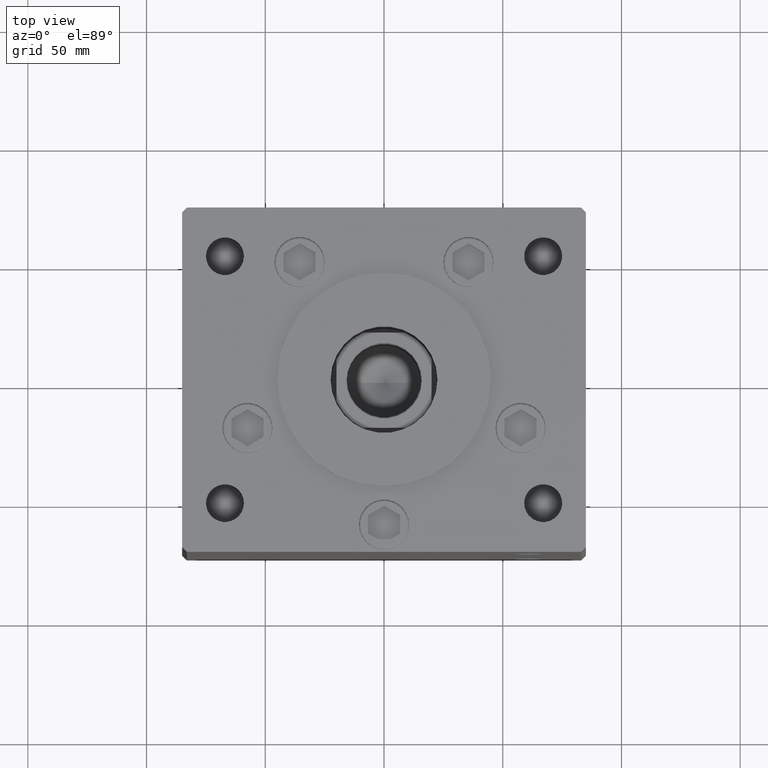
[diagram: clean part render]
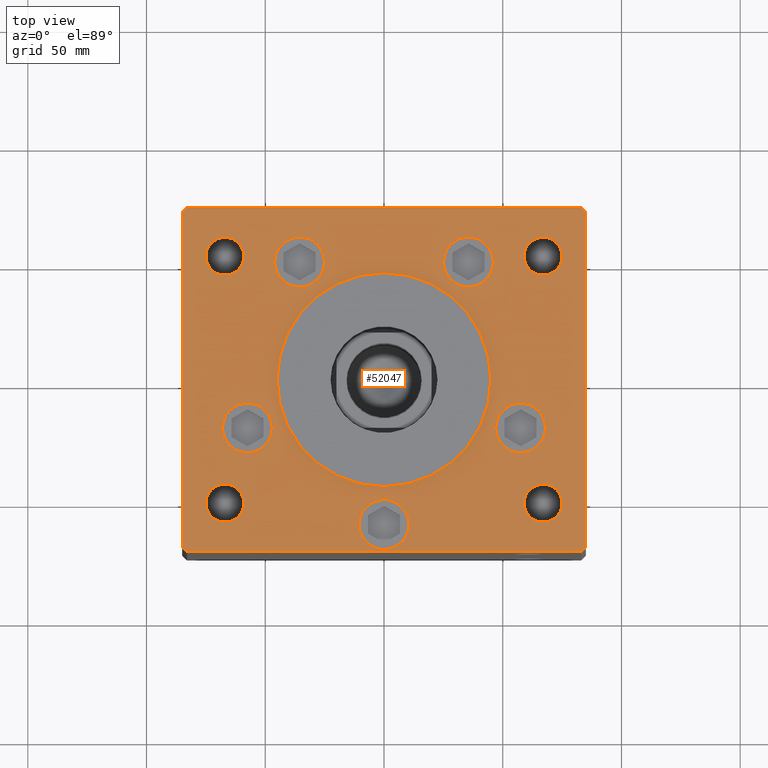
[diagram: same view with one face highlighted and labeled with its STEP entity id]
A machine part, top view. The second image highlights one B-rep face of the part: STEP entity #52047.
In plain terms, the highlighted planar face has unit normal (0, 0, 1).
Its self-contained STEP definition (entity closure, byte-faithful):
#206 = VERTEX_POINT ( 'NONE', #36630 ) ;
#694 = CARTESIAN_POINT ( 'NONE',  ( 75.00000000000001421, -52.00000000000000711, 0.000000000000000000 ) ) ;
#886 = EDGE_LOOP ( 'NONE', ( #25043, #50322 ) ) ;
#955 = FACE_BOUND ( 'NONE', #886, .T. ) ;
#1436 = CARTESIAN_POINT ( 'NONE',  ( -67.00000000000000000, 52.00000000000001421, 0.000000000000000000 ) ) ;
#1545 = DIRECTION ( 'NONE',  ( 1.000000000000000000, 0.000000000000000000, 0.000000000000000000 ) ) ;
#1785 = CARTESIAN_POINT ( 'NONE',  ( -45.00000000000000711, -6.938893903907228378E-15, 0.000000000000000000 ) ) ;
#1944 = VERTEX_POINT ( 'NONE', #1785 ) ;
#2004 = DIRECTION ( 'NONE',  ( -1.000000000000000000, 0.000000000000000000, 0.000000000000000000 ) ) ;
#2108 = VERTEX_POINT ( 'NONE', #32311 ) ;
#2288 = CIRCLE ( 'NONE', #18278, 45.00000000000000711 ) ;
#2325 = DIRECTION ( 'NONE',  ( 1.000000000000000000, 0.000000000000000000, 0.000000000000000000 ) ) ;
#2572 = ORIENTED_EDGE ( 'NONE', *, *, #50758, .F. ) ;
#2720 = CIRCLE ( 'NONE', #42301, 8.000000000000007105 ) ;
#2862 = ORIENTED_EDGE ( 'NONE', *, *, #39674, .T. ) ;
#2910 = DIRECTION ( 'NONE',  ( 1.000000000000000000, 0.000000000000000000, 0.000000000000000000 ) ) ;
#3046 = VERTEX_POINT ( 'NONE', #50457 ) ;
#3118 = CIRCLE ( 'NONE', #10691, 10.50000000000000178 ) ;
#3272 = EDGE_CURVE ( 'NONE', #40549, #3046, #4960, .T. ) ;
#3904 = CIRCLE ( 'NONE', #10649, 45.00000000000000711 ) ;
#4010 = AXIS2_PLACEMENT_3D ( 'NONE', #43092, #6986, #39653 ) ;
#4475 = CIRCLE ( 'NONE', #11215, 8.000000000000007105 ) ;
#4628 = DIRECTION ( 'NONE',  ( -0.000000000000000000, -0.000000000000000000, -1.000000000000000000 ) ) ;
#4642 = FACE_OUTER_BOUND ( 'NONE', #49721, .T. ) ;
#4894 = CARTESIAN_POINT ( 'NONE',  ( -85.00000000000000000, -70.50000000000004263, 0.000000000000000000 ) ) ;
#4905 = FACE_BOUND ( 'NONE', #29186, .T. ) ;
#4960 = CIRCLE ( 'NONE', #47037, 8.000000000000000000 ) ;
#5447 = CARTESIAN_POINT ( 'NONE',  ( 67.00000000000000000, -52.00000000000000711, 0.000000000000000000 ) ) ;
#5983 = CARTESIAN_POINT ( 'NONE',  ( -82.99999999999998579, 72.49999999999998579, 0.000000000000000000 ) ) ;
#6090 = VERTEX_POINT ( 'NONE', #32036 ) ;
#6341 = DIRECTION ( 'NONE',  ( 0.000000000000000000, 0.000000000000000000, 1.000000000000000000 ) ) ;
#6356 = ORIENTED_EDGE ( 'NONE', *, *, #25460, .F. ) ;
#6420 = VERTEX_POINT ( 'NONE', #44362 ) ;
#6522 = DIRECTION ( 'NONE',  ( 1.000000000000000000, 0.000000000000000000, 0.000000000000000000 ) ) ;
#6986 = DIRECTION ( 'NONE',  ( 0.000000000000000000, 0.000000000000000000, 1.000000000000000000 ) ) ;
#7107 = CARTESIAN_POINT ( 'NONE',  ( 45.00000000000000711, -1.427983307744138033E-15, 0.000000000000000000 ) ) ;
#7109 = EDGE_CURVE ( 'NONE', #48086, #13412, #40470, .T. ) ;
#7186 = EDGE_CURVE ( 'NONE', #45048, #37041, #4475, .T. ) ;
#7563 = CARTESIAN_POINT ( 'NONE',  ( 85.00000000000001421, -70.49999999999994316, 0.000000000000000000 ) ) ;
#7665 = CARTESIAN_POINT ( 'NONE',  ( 83.00000000000001421, 72.50000000000002842, 0.000000000000000000 ) ) ;
#7725 = CIRCLE ( 'NONE', #47273, 10.49999999999999467 ) ;
#7854 = VERTEX_POINT ( 'NONE', #34420 ) ;
#7861 = VECTOR ( 'NONE', #20970, 1000.000000000000114 ) ;
#8096 = DIRECTION ( 'NONE',  ( 0.000000000000000000, 1.000000000000000000, 0.000000000000000000 ) ) ;
#8102 = ORIENTED_EDGE ( 'NONE', *, *, #40623, .F. ) ;
#8187 = DIRECTION ( 'NONE',  ( 0.000000000000000000, 0.000000000000000000, 1.000000000000000000 ) ) ;
#8289 = CARTESIAN_POINT ( 'NONE',  ( -67.00000000000000000, 52.00000000000001421, 0.000000000000000000 ) ) ;
#8439 = ORIENTED_EDGE ( 'NONE', *, *, #30050, .F. ) ;
#8478 = VERTEX_POINT ( 'NONE', #7107 ) ;
#8967 = VERTEX_POINT ( 'NONE', #47238 ) ;
#8971 = EDGE_CURVE ( 'NONE', #6420, #20685, #10622, .T. ) ;
#8982 = ORIENTED_EDGE ( 'NONE', *, *, #8971, .T. ) ;
#8985 = EDGE_CURVE ( 'NONE', #20685, #51470, #14304, .T. ) ;
#9107 = ORIENTED_EDGE ( 'NONE', *, *, #44067, .F. ) ;
#9456 = CARTESIAN_POINT ( 'NONE',  ( -59.00000000000000711, 52.00000000000001421, 0.000000000000000000 ) ) ;
#9644 = VECTOR ( 'NONE', #14830, 1000.000000000000000 ) ;
#10033 = VERTEX_POINT ( 'NONE', #10362 ) ;
#10105 = AXIS2_PLACEMENT_3D ( 'NONE', #17629, #45309, #1545 ) ;
#10362 = CARTESIAN_POINT ( 'NONE',  ( 83.00000000000001421, -72.49999999999994316, 0.000000000000000000 ) ) ;
#10436 = ORIENTED_EDGE ( 'NONE', *, *, #8985, .T. ) ;
#10622 = LINE ( 'NONE', #46719, #51687 ) ;
#10649 = AXIS2_PLACEMENT_3D ( 'NONE', #32163, #40848, #24520 ) ;
#10691 = AXIS2_PLACEMENT_3D ( 'NONE', #23486, #8187, #20314 ) ;
#10820 = EDGE_CURVE ( 'NONE', #28755, #8967, #18961, .T. ) ;
#10943 = AXIS2_PLACEMENT_3D ( 'NONE', #21189, #29612, #13015 ) ;
#11106 = CARTESIAN_POINT ( 'NONE',  ( 59.00000000000000000, -52.00000000000000711, 0.000000000000000000 ) ) ;
#11175 = DIRECTION ( 'NONE',  ( 1.000000000000000000, 0.000000000000000000, 0.000000000000000000 ) ) ;
#11215 = AXIS2_PLACEMENT_3D ( 'NONE', #36261, #4628, #25450 ) ;
#11233 = DIRECTION ( 'NONE',  ( 0.7071067811865474617, 0.7071067811865474617, 0.000000000000000000 ) ) ;
#11298 = ORIENTED_EDGE ( 'NONE', *, *, #7186, .T. ) ;
#12330 = EDGE_LOOP ( 'NONE', ( #47280, #31994 ) ) ;
#12557 = FACE_BOUND ( 'NONE', #44996, .T. ) ;
#12856 = VERTEX_POINT ( 'NONE', #9456 ) ;
#13015 = DIRECTION ( 'NONE',  ( 1.000000000000000000, 0.000000000000000000, 0.000000000000000000 ) ) ;
#13286 = EDGE_CURVE ( 'NONE', #12856, #26447, #21533, .T. ) ;
#13336 = EDGE_CURVE ( 'NONE', #6090, #49286, #47592, .T. ) ;
#13337 = FACE_BOUND ( 'NONE', #26495, .T. ) ;
#13361 = ORIENTED_EDGE ( 'NONE', *, *, #13336, .F. ) ;
#13412 = VERTEX_POINT ( 'NONE', #29109 ) ;
#13448 = EDGE_LOOP ( 'NONE', ( #16772, #33889 ) ) ;
#13958 = DIRECTION ( 'NONE',  ( 1.000000000000000000, 0.000000000000000000, 0.000000000000000000 ) ) ;
#14304 = LINE ( 'NONE', #43278, #9644 ) ;
#14311 = CIRCLE ( 'NONE', #10105, 10.50000000000000178 ) ;
#14830 = DIRECTION ( 'NONE',  ( -1.000000000000000000, -2.508033941171286997E-16, 0.000000000000000000 ) ) ;
#14943 = EDGE_CURVE ( 'NONE', #10033, #44870, #51545, .T. ) ;
#15033 = CARTESIAN_POINT ( 'NONE',  ( 0.000000000000000000, -6.938893903907228378E-15, 0.000000000000000000 ) ) ;
#15139 = DIRECTION ( 'NONE',  ( 0.000000000000000000, 0.000000000000000000, 1.000000000000000000 ) ) ;
#15507 = VERTEX_POINT ( 'NONE', #32502 ) ;
#15885 = EDGE_CURVE ( 'NONE', #8967, #28755, #3118, .T. ) ;
#16520 = DIRECTION ( 'NONE',  ( 1.000000000000000000, 0.000000000000000000, 0.000000000000000000 ) ) ;
#16594 = CARTESIAN_POINT ( 'NONE',  ( -47.01135153650587029, -20.33333333333332504, 0.000000000000000000 ) ) ;
#16712 = CARTESIAN_POINT ( 'NONE',  ( -85.00000000000000000, -70.50000000000004263, 0.000000000000000000 ) ) ;
#16772 = ORIENTED_EDGE ( 'NONE', *, *, #13286, .T. ) ;
#17028 = FACE_BOUND ( 'NONE', #12330, .T. ) ;
#17049 = DIRECTION ( 'NONE',  ( -0.000000000000000000, -0.000000000000000000, -1.000000000000000000 ) ) ;
#17200 = EDGE_CURVE ( 'NONE', #1944, #8478, #2288, .T. ) ;
#17307 = ORIENTED_EDGE ( 'NONE', *, *, #48949, .T. ) ;
#17318 = EDGE_LOOP ( 'NONE', ( #11298, #17307 ) ) ;
#17338 = DIRECTION ( 'NONE',  ( 0.000000000000000000, 0.000000000000000000, 1.000000000000000000 ) ) ;
#17504 = EDGE_CURVE ( 'NONE', #13412, #10033, #28333, .T. ) ;
#17629 = CARTESIAN_POINT ( 'NONE',  ( 35.56063263990113654, 49.56249999999997868, 0.000000000000000000 ) ) ;
#17853 = LINE ( 'NONE', #5983, #26276 ) ;
#17910 = CARTESIAN_POINT ( 'NONE',  ( -59.00000000000000711, -52.00000000000000711, 0.000000000000000000 ) ) ;
#17929 = DIRECTION ( 'NONE',  ( 0.000000000000000000, 0.000000000000000000, 1.000000000000000000 ) ) ;
#18278 = AXIS2_PLACEMENT_3D ( 'NONE', #15033, #6341, #2910 ) ;
#18354 = CIRCLE ( 'NONE', #47804, 8.000000000000000000 ) ;
#18358 = ORIENTED_EDGE ( 'NONE', *, *, #49981, .F. ) ;
#18674 = DIRECTION ( 'NONE',  ( 0.000000000000000000, 0.000000000000000000, 1.000000000000000000 ) ) ;
#18961 = CIRCLE ( 'NONE', #33269, 10.50000000000000178 ) ;
#19186 = ORIENTED_EDGE ( 'NONE', *, *, #17504, .T. ) ;
#19370 = VERTEX_POINT ( 'NONE', #38892 ) ;
#19625 = EDGE_CURVE ( 'NONE', #8478, #1944, #3904, .T. ) ;
#20314 = DIRECTION ( 'NONE',  ( 1.000000000000000000, 0.000000000000000000, 0.000000000000000000 ) ) ;
#20458 = DIRECTION ( 'NONE',  ( 1.000000000000000000, 0.000000000000000000, 0.000000000000000000 ) ) ;
#20685 = VERTEX_POINT ( 'NONE', #7665 ) ;
#20721 = PLANE ( 'NONE',  #26417 ) ;
#20755 = LINE ( 'NONE', #36834, #27857 ) ;
#20835 = ORIENTED_EDGE ( 'NONE', *, *, #14943, .T. ) ;
#20944 = DIRECTION ( 'NONE',  ( 1.000000000000000000, 5.852079196066335998E-16, 0.000000000000000000 ) ) ;
#20970 = DIRECTION ( 'NONE',  ( 0.7071067811865474617, -0.7071067811865474617, 0.000000000000000000 ) ) ;
#21189 = CARTESIAN_POINT ( 'NONE',  ( 57.51135153650587029, -20.33333333333332504, 0.000000000000000000 ) ) ;
#21533 = CIRCLE ( 'NONE', #50978, 7.999999999999992895 ) ;
#22086 = EDGE_CURVE ( 'NONE', #49286, #6090, #30059, .T. ) ;
#22257 = AXIS2_PLACEMENT_3D ( 'NONE', #37289, #49147, #29126 ) ;
#22367 = DIRECTION ( 'NONE',  ( 0.000000000000000000, 0.000000000000000000, 1.000000000000000000 ) ) ;
#22528 = CARTESIAN_POINT ( 'NONE',  ( 67.00000000000000000, 52.00000000000000000, 0.000000000000000000 ) ) ;
#23028 = ORIENTED_EDGE ( 'NONE', *, *, #38233, .F. ) ;
#23134 = EDGE_CURVE ( 'NONE', #38842, #47068, #46939, .T. ) ;
#23486 = CARTESIAN_POINT ( 'NONE',  ( -57.51135153650587029, -20.33333333333332504, 0.000000000000000000 ) ) ;
#24520 = DIRECTION ( 'NONE',  ( 1.000000000000000000, 0.000000000000000000, 0.000000000000000000 ) ) ;
#24649 = VERTEX_POINT ( 'NONE', #43570 ) ;
#24675 = CARTESIAN_POINT ( 'NONE',  ( -75.00000000000000000, 52.00000000000001421, 0.000000000000000000 ) ) ;
#24904 = DIRECTION ( 'NONE',  ( -1.000000000000000000, 0.000000000000000000, 0.000000000000000000 ) ) ;
#25043 = ORIENTED_EDGE ( 'NONE', *, *, #10820, .F. ) ;
#25450 = DIRECTION ( 'NONE',  ( -1.000000000000000000, 0.000000000000000000, 0.000000000000000000 ) ) ;
#25460 = EDGE_CURVE ( 'NONE', #3046, #40549, #18354, .T. ) ;
#26095 = CIRCLE ( 'NONE', #10943, 10.49999999999999467 ) ;
#26276 = VECTOR ( 'NONE', #45540, 1000.000000000000000 ) ;
#26417 = AXIS2_PLACEMENT_3D ( 'NONE', #29417, #40221, #20458 ) ;
#26447 = VERTEX_POINT ( 'NONE', #24675 ) ;
#26495 = EDGE_LOOP ( 'NONE', ( #23028, #46670 ) ) ;
#26768 = CARTESIAN_POINT ( 'NONE',  ( -46.06063263990113654, 49.56249999999997868, 0.000000000000000000 ) ) ;
#27049 = CARTESIAN_POINT ( 'NONE',  ( 83.00000000000001421, -72.49999999999994316, 0.000000000000000000 ) ) ;
#27214 = DIRECTION ( 'NONE',  ( -0.7071067811865500152, 0.7071067811865451302, 0.000000000000000000 ) ) ;
#27568 = ORIENTED_EDGE ( 'NONE', *, *, #22086, .F. ) ;
#27607 = LINE ( 'NONE', #7563, #34555 ) ;
#27857 = VECTOR ( 'NONE', #48954, 1000.000000000000000 ) ;
#27948 = ORIENTED_EDGE ( 'NONE', *, *, #7109, .T. ) ;
#28333 = LINE ( 'NONE', #49401, #40171 ) ;
#28386 = CARTESIAN_POINT ( 'NONE',  ( 57.51135153650587029, -20.33333333333332504, 0.000000000000000000 ) ) ;
#28409 = AXIS2_PLACEMENT_3D ( 'NONE', #33693, #33947, #6522 ) ;
#28736 = CIRCLE ( 'NONE', #50579, 10.50000000000000178 ) ;
#28755 = VERTEX_POINT ( 'NONE', #16594 ) ;
#29109 = CARTESIAN_POINT ( 'NONE',  ( -83.00000000000001421, -72.50000000000004263, 0.000000000000000000 ) ) ;
#29126 = DIRECTION ( 'NONE',  ( 1.000000000000000000, 0.000000000000000000, 0.000000000000000000 ) ) ;
#29186 = EDGE_LOOP ( 'NONE', ( #18358, #9107 ) ) ;
#29417 = CARTESIAN_POINT ( 'NONE',  ( 0.000000000000000000, 0.000000000000000000, 0.000000000000000000 ) ) ;
#29504 = EDGE_CURVE ( 'NONE', #26447, #12856, #32799, .T. ) ;
#29510 = EDGE_LOOP ( 'NONE', ( #8102, #8439 ) ) ;
#29540 = CARTESIAN_POINT ( 'NONE',  ( -67.00000000000000000, -52.00000000000000711, 0.000000000000000000 ) ) ;
#29612 = DIRECTION ( 'NONE',  ( 0.000000000000000000, 0.000000000000000000, 1.000000000000000000 ) ) ;
#29707 = ORIENTED_EDGE ( 'NONE', *, *, #23134, .F. ) ;
#30050 = EDGE_CURVE ( 'NONE', #206, #24649, #26095, .T. ) ;
#30053 = DIRECTION ( 'NONE',  ( 1.000000000000000000, 0.000000000000000000, 0.000000000000000000 ) ) ;
#30059 = CIRCLE ( 'NONE', #28409, 10.50000000000000000 ) ;
#30564 = EDGE_CURVE ( 'NONE', #35358, #19370, #14311, .T. ) ;
#30675 = CIRCLE ( 'NONE', #22257, 8.000000000000007105 ) ;
#31470 = DIRECTION ( 'NONE',  ( 1.000000000000000000, 0.000000000000000000, 0.000000000000000000 ) ) ;
#31592 = EDGE_CURVE ( 'NONE', #44870, #6420, #27607, .T. ) ;
#31994 = ORIENTED_EDGE ( 'NONE', *, *, #19625, .F. ) ;
#32036 = CARTESIAN_POINT ( 'NONE',  ( 10.50000000000000000, -61.00000000000000000, 0.000000000000000000 ) ) ;
#32163 = CARTESIAN_POINT ( 'NONE',  ( 0.000000000000000000, -6.938893903907228378E-15, 0.000000000000000000 ) ) ;
#32270 = DIRECTION ( 'NONE',  ( 0.000000000000000000, 0.000000000000000000, 1.000000000000000000 ) ) ;
#32311 = CARTESIAN_POINT ( 'NONE',  ( -85.00000000000000000, 70.50000000000000000, 0.000000000000000000 ) ) ;
#32420 = AXIS2_PLACEMENT_3D ( 'NONE', #39221, #18674, #13958 ) ;
#32502 = CARTESIAN_POINT ( 'NONE',  ( 59.00000000000000000, 52.00000000000000000, 0.000000000000000000 ) ) ;
#32799 = CIRCLE ( 'NONE', #39525, 7.999999999999992895 ) ;
#32845 = FACE_BOUND ( 'NONE', #13448, .T. ) ;
#33269 = AXIS2_PLACEMENT_3D ( 'NONE', #38433, #22367, #2325 ) ;
#33583 = DIRECTION ( 'NONE',  ( -0.000000000000000000, -0.000000000000000000, -1.000000000000000000 ) ) ;
#33693 = CARTESIAN_POINT ( 'NONE',  ( 0.000000000000000000, -61.00000000000000000, 0.000000000000000000 ) ) ;
#33889 = ORIENTED_EDGE ( 'NONE', *, *, #29504, .T. ) ;
#33947 = DIRECTION ( 'NONE',  ( 0.000000000000000000, 0.000000000000000000, 1.000000000000000000 ) ) ;
#34420 = CARTESIAN_POINT ( 'NONE',  ( 75.00000000000001421, 52.00000000000000000, 0.000000000000000000 ) ) ;
#34531 = CARTESIAN_POINT ( 'NONE',  ( 35.56063263990113654, 49.56249999999997868, 0.000000000000000000 ) ) ;
#34555 = VECTOR ( 'NONE', #8096, 1000.000000000000000 ) ;
#35358 = VERTEX_POINT ( 'NONE', #52111 ) ;
#36261 = CARTESIAN_POINT ( 'NONE',  ( 67.00000000000000000, -52.00000000000000711, 0.000000000000000000 ) ) ;
#36535 = FACE_BOUND ( 'NONE', #37417, .T. ) ;
#36630 = CARTESIAN_POINT ( 'NONE',  ( 47.01135153650587739, -20.33333333333332504, 0.000000000000000000 ) ) ;
#36834 = CARTESIAN_POINT ( 'NONE',  ( -85.00000000000000000, 70.50000000000000000, 0.000000000000000000 ) ) ;
#36897 = EDGE_LOOP ( 'NONE', ( #13361, #27568 ) ) ;
#37041 = VERTEX_POINT ( 'NONE', #11106 ) ;
#37289 = CARTESIAN_POINT ( 'NONE',  ( 67.00000000000000000, 52.00000000000000000, 0.000000000000000000 ) ) ;
#37417 = EDGE_LOOP ( 'NONE', ( #2572, #29707 ) ) ;
#38233 = EDGE_CURVE ( 'NONE', #19370, #35358, #28736, .T. ) ;
#38405 = CARTESIAN_POINT ( 'NONE',  ( 85.00000000000001421, -70.49999999999994316, 0.000000000000000000 ) ) ;
#38433 = CARTESIAN_POINT ( 'NONE',  ( -57.51135153650587029, -20.33333333333332504, 0.000000000000000000 ) ) ;
#38842 = VERTEX_POINT ( 'NONE', #26768 ) ;
#38892 = CARTESIAN_POINT ( 'NONE',  ( 46.06063263990113654, 49.56249999999997868, 0.000000000000000000 ) ) ;
#39072 = CARTESIAN_POINT ( 'NONE',  ( -10.50000000000000000, -61.00000000000000000, 0.000000000000000000 ) ) ;
#39221 = CARTESIAN_POINT ( 'NONE',  ( -35.56063263990113654, 49.56249999999997868, 0.000000000000000000 ) ) ;
#39525 = AXIS2_PLACEMENT_3D ( 'NONE', #1436, #33583, #24904 ) ;
#39547 = ORIENTED_EDGE ( 'NONE', *, *, #31592, .T. ) ;
#39653 = DIRECTION ( 'NONE',  ( 1.000000000000000000, 0.000000000000000000, 0.000000000000000000 ) ) ;
#39674 = EDGE_CURVE ( 'NONE', #2108, #48086, #20755, .T. ) ;
#39883 = AXIS2_PLACEMENT_3D ( 'NONE', #5447, #17049, #2004 ) ;
#40170 = DIRECTION ( 'NONE',  ( -1.000000000000000000, 0.000000000000000000, 0.000000000000000000 ) ) ;
#40171 = VECTOR ( 'NONE', #20944, 1000.000000000000000 ) ;
#40221 = DIRECTION ( 'NONE',  ( -0.000000000000000000, 0.000000000000000000, 1.000000000000000000 ) ) ;
#40235 = DIRECTION ( 'NONE',  ( 0.000000000000000000, 0.000000000000000000, 1.000000000000000000 ) ) ;
#40470 = LINE ( 'NONE', #4894, #7861 ) ;
#40549 = VERTEX_POINT ( 'NONE', #17910 ) ;
#40623 = EDGE_CURVE ( 'NONE', #24649, #206, #7725, .T. ) ;
#40722 = CIRCLE ( 'NONE', #39883, 8.000000000000007105 ) ;
#40737 = FACE_BOUND ( 'NONE', #36897, .T. ) ;
#40848 = DIRECTION ( 'NONE',  ( 0.000000000000000000, 0.000000000000000000, 1.000000000000000000 ) ) ;
#40959 = DIRECTION ( 'NONE',  ( 1.000000000000000000, 0.000000000000000000, 0.000000000000000000 ) ) ;
#42301 = AXIS2_PLACEMENT_3D ( 'NONE', #22528, #15139, #31470 ) ;
#42470 = EDGE_CURVE ( 'NONE', #51470, #2108, #17853, .T. ) ;
#42706 = DIRECTION ( 'NONE',  ( 0.000000000000000000, 0.000000000000000000, 1.000000000000000000 ) ) ;
#43092 = CARTESIAN_POINT ( 'NONE',  ( -35.56063263990113654, 49.56249999999997868, 0.000000000000000000 ) ) ;
#43278 = CARTESIAN_POINT ( 'NONE',  ( 83.00000000000001421, 72.50000000000002842, 0.000000000000000000 ) ) ;
#43570 = CARTESIAN_POINT ( 'NONE',  ( 68.01135153650587029, -20.33333333333332504, 0.000000000000000000 ) ) ;
#43864 = CARTESIAN_POINT ( 'NONE',  ( 0.000000000000000000, -61.00000000000000000, 0.000000000000000000 ) ) ;
#43922 = ORIENTED_EDGE ( 'NONE', *, *, #42470, .T. ) ;
#44067 = EDGE_CURVE ( 'NONE', #15507, #7854, #2720, .T. ) ;
#44362 = CARTESIAN_POINT ( 'NONE',  ( 85.00000000000001421, 70.50000000000002842, 0.000000000000000000 ) ) ;
#44445 = FACE_BOUND ( 'NONE', #17318, .T. ) ;
#44870 = VERTEX_POINT ( 'NONE', #38405 ) ;
#44996 = EDGE_LOOP ( 'NONE', ( #46170, #6356 ) ) ;
#45048 = VERTEX_POINT ( 'NONE', #694 ) ;
#45309 = DIRECTION ( 'NONE',  ( 0.000000000000000000, 0.000000000000000000, 1.000000000000000000 ) ) ;
#45540 = DIRECTION ( 'NONE',  ( -0.7071067811865549002, -0.7071067811865401342, 0.000000000000000000 ) ) ;
#46170 = ORIENTED_EDGE ( 'NONE', *, *, #3272, .F. ) ;
#46670 = ORIENTED_EDGE ( 'NONE', *, *, #30564, .F. ) ;
#46719 = CARTESIAN_POINT ( 'NONE',  ( 85.00000000000001421, 70.50000000000002842, 0.000000000000000000 ) ) ;
#46939 = CIRCLE ( 'NONE', #4010, 10.50000000000000178 ) ;
#47037 = AXIS2_PLACEMENT_3D ( 'NONE', #29540, #17929, #30053 ) ;
#47068 = VERTEX_POINT ( 'NONE', #51504 ) ;
#47238 = CARTESIAN_POINT ( 'NONE',  ( -68.01135153650587029, -20.33333333333332504, 0.000000000000000000 ) ) ;
#47273 = AXIS2_PLACEMENT_3D ( 'NONE', #28386, #40235, #16520 ) ;
#47280 = ORIENTED_EDGE ( 'NONE', *, *, #17200, .F. ) ;
#47474 = CARTESIAN_POINT ( 'NONE',  ( -82.99999999999998579, 72.49999999999998579, 0.000000000000000000 ) ) ;
#47592 = CIRCLE ( 'NONE', #51800, 10.50000000000000000 ) ;
#47804 = AXIS2_PLACEMENT_3D ( 'NONE', #50006, #17338, #11175 ) ;
#48086 = VERTEX_POINT ( 'NONE', #16712 ) ;
#48949 = EDGE_CURVE ( 'NONE', #37041, #45048, #40722, .T. ) ;
#48954 = DIRECTION ( 'NONE',  ( 0.000000000000000000, -1.000000000000000000, 0.000000000000000000 ) ) ;
#49147 = DIRECTION ( 'NONE',  ( 0.000000000000000000, 0.000000000000000000, 1.000000000000000000 ) ) ;
#49233 = CIRCLE ( 'NONE', #32420, 10.50000000000000178 ) ;
#49286 = VERTEX_POINT ( 'NONE', #39072 ) ;
#49401 = CARTESIAN_POINT ( 'NONE',  ( -83.00000000000001421, -72.50000000000004263, 0.000000000000000000 ) ) ;
#49441 = FACE_BOUND ( 'NONE', #29510, .T. ) ;
#49721 = EDGE_LOOP ( 'NONE', ( #27948, #19186, #20835, #39547, #8982, #10436, #43922, #2862 ) ) ;
#49981 = EDGE_CURVE ( 'NONE', #7854, #15507, #30675, .T. ) ;
#50006 = CARTESIAN_POINT ( 'NONE',  ( -67.00000000000000000, -52.00000000000000711, 0.000000000000000000 ) ) ;
#50232 = VECTOR ( 'NONE', #11233, 1000.000000000000114 ) ;
#50322 = ORIENTED_EDGE ( 'NONE', *, *, #15885, .F. ) ;
#50457 = CARTESIAN_POINT ( 'NONE',  ( -75.00000000000000000, -52.00000000000000711, 0.000000000000000000 ) ) ;
#50579 = AXIS2_PLACEMENT_3D ( 'NONE', #34531, #42706, #50609 ) ;
#50609 = DIRECTION ( 'NONE',  ( 1.000000000000000000, 0.000000000000000000, 0.000000000000000000 ) ) ;
#50758 = EDGE_CURVE ( 'NONE', #47068, #38842, #49233, .T. ) ;
#50978 = AXIS2_PLACEMENT_3D ( 'NONE', #8289, #52027, #40170 ) ;
#51470 = VERTEX_POINT ( 'NONE', #47474 ) ;
#51504 = CARTESIAN_POINT ( 'NONE',  ( -25.06063263990113299, 49.56249999999997868, 0.000000000000000000 ) ) ;
#51545 = LINE ( 'NONE', #27049, #50232 ) ;
#51687 = VECTOR ( 'NONE', #27214, 1000.000000000000114 ) ;
#51800 = AXIS2_PLACEMENT_3D ( 'NONE', #43864, #32270, #40959 ) ;
#52027 = DIRECTION ( 'NONE',  ( -0.000000000000000000, -0.000000000000000000, -1.000000000000000000 ) ) ;
#52047 = ADVANCED_FACE ( 'NONE', ( #17028, #955, #40737, #49441, #13337, #36535, #32845, #4905, #12557, #4642, #44445 ), #20721, .T. ) ;
#52111 = CARTESIAN_POINT ( 'NONE',  ( 25.06063263990113299, 49.56249999999997868, 0.000000000000000000 ) ) ;